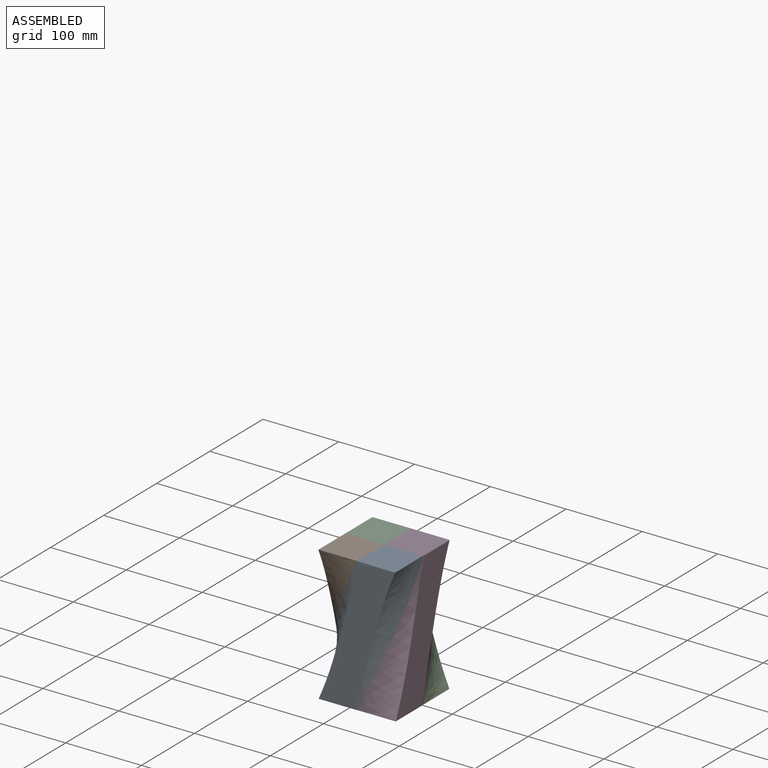
[diagram: assembled view]
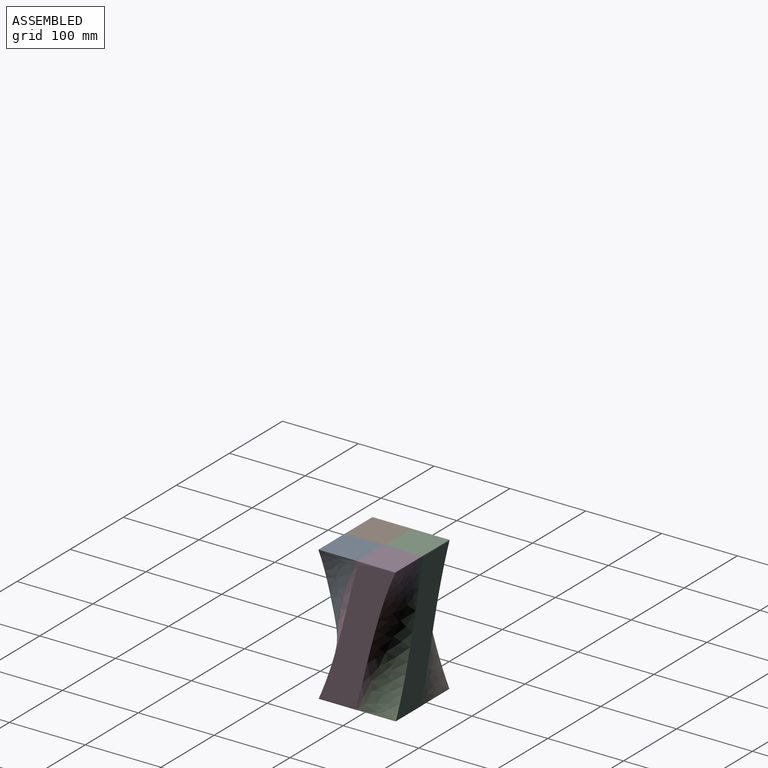
[diagram: assembled view, second angle]
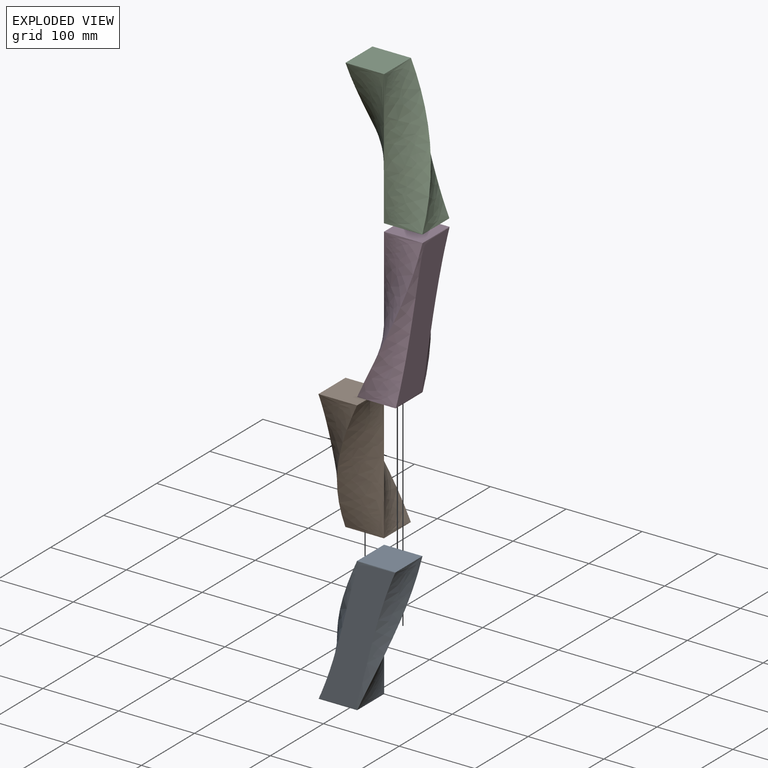
[diagram: exploded view]
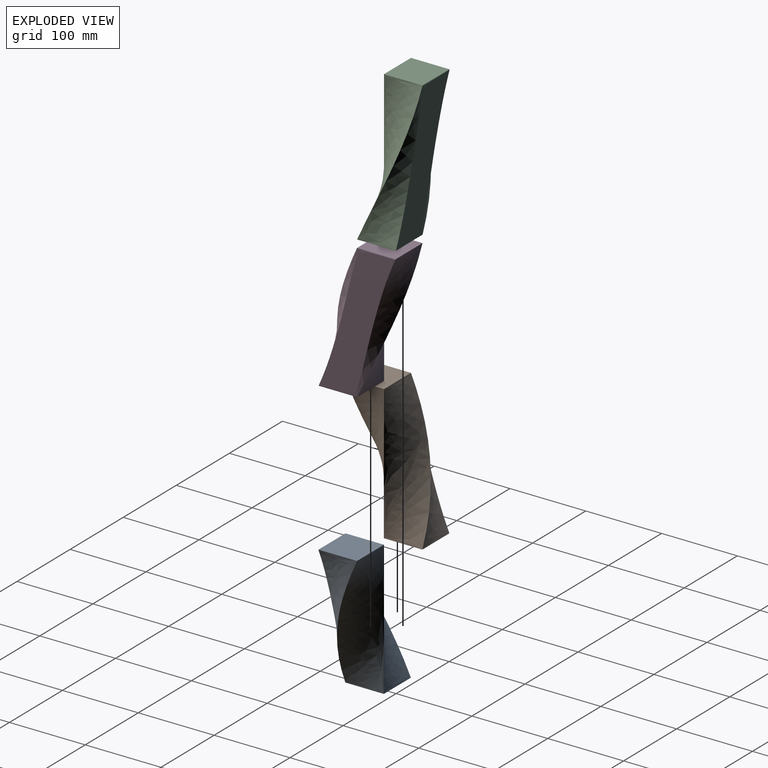
[diagram: exploded view, second angle]
ASSEMBLY  parts=4 mates=3
PART A: 8 faces, bbox 106.4x77.4x189.7 mm
  f0: bspline ~189.65x106.4mm, area 4233.7mm2, adj f2,f3,f4,f5,f6
  f1: bspline ~189.65x55.89mm, area 9325.5mm2, adj f2,f3,f4,f5
  f2: bspline ~189.65x106.41mm, area 4230.9mm2, adj f0,f1,f3,f4,f6,f7
  f3: plane 50.81x50.81mm, normal (0,0,-1), area 2580.4mm2, adj f0,f1,f2,f5,f7
  f4: plane 50.8x50.8mm, normal (0,0,1), area 2580.6mm2, adj f0,f1,f2,f5
  f5: bspline ~189.65x56.09mm, area 9325.2mm2, adj f0,f1,f3,f4
  f6: plane 176.83x100.94mm, normal (0,-1,0), area 7633.9mm2, adj f0,f2
  f7: plane 39.07x0.09mm, normal (-1,0,0), area 0.9mm2, adj f2,f3
PART B: same geometry as A
PART C: same geometry as A
PART D: same geometry as A
PLACE A t=(14.1,-6.27,0)mm
PLACE B rot(axis=(0,0,-1),90deg) t=(13.89,-5.99,0)mm
PLACE C rot(axis=(0,0,1),180deg) t=(14.17,-5.77,0)mm
PLACE D rot(axis=(0,0,1),90deg) t=(14.38,-6.05,0)mm
MATE fastened D.f4 <-> A.f4  axis (0,0,1) through (14.14,-6.02,177.8)mm
MATE fastened C.f4 <-> D.f4  axis (0,0,1) through (14.14,-6.02,177.8)mm
MATE fastened B.f4 <-> A.f4  axis (0,0,1) through (14.14,-31.42,177.8)mm
